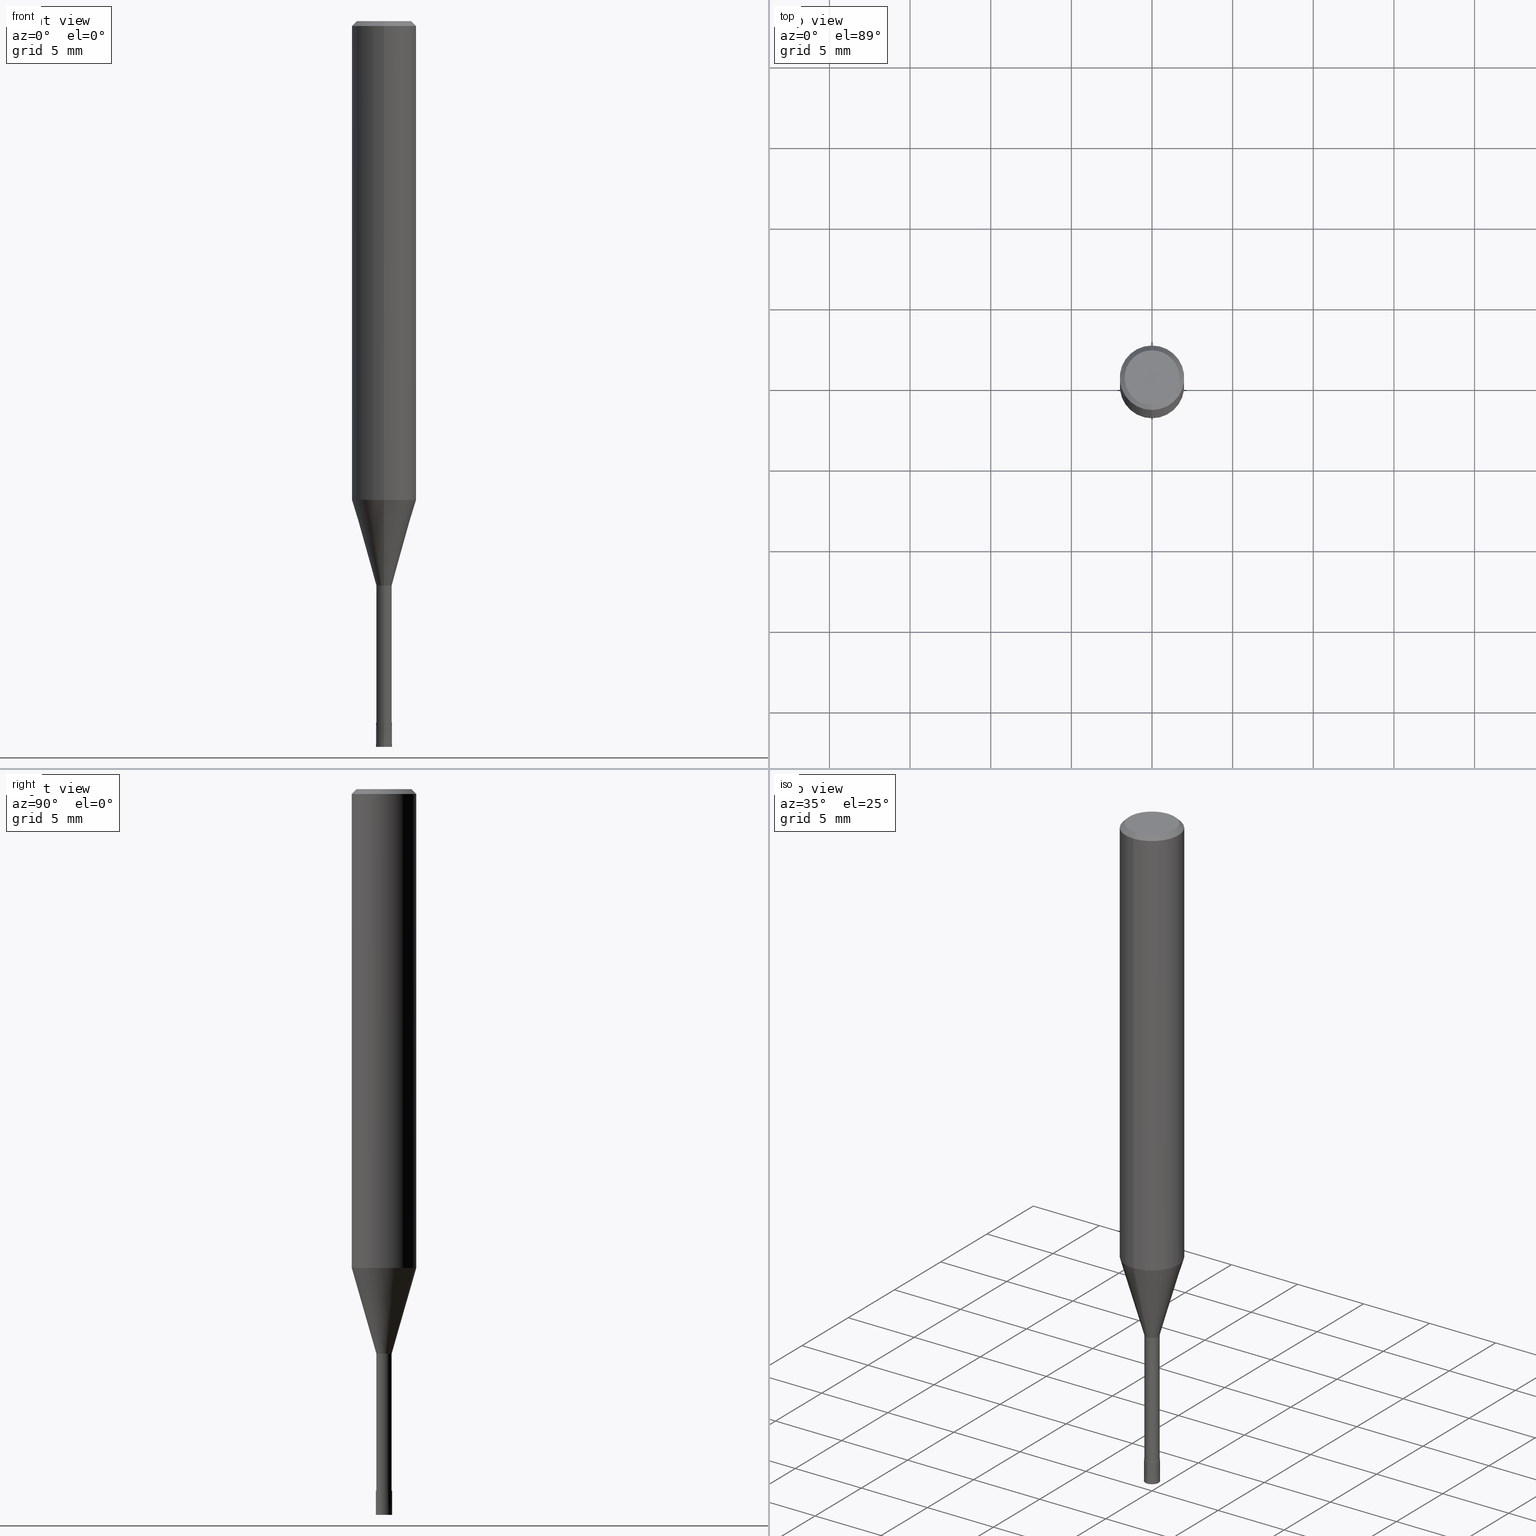
[diagram: canonical four-view strip — front | top / right | iso, engineering-drawing reading convention]
A machine part, canonical four-view strip (front | top / right | iso — engineering-drawing reading convention). The complete STEP part file that produces these views, byte-faithful:
ISO-10303-21;
HEADER;
FILE_DESCRIPTION(('no description'),'unknown implementation level');
FILE_NAME('HLS2010-100-Huellk.stp','  ',('CIMSOURCE GmbH'),('CADClick - KiM GmbH - www.kimweb.de'),'unknown preprocess','ACIS','unknown authorization');
FILE_SCHEMA(('automotive_design'));
ENDSEC;
DATA;
#1=MECHANICAL_DESIGN_GEOMETRIC_PRESENTATION_REPRESENTATION(' ',(#14,#15,#16,#17,#18,#19,#20,#21,#22,#23,#24,#25,#26,#27,#28,#29,#30,#31,#32,#33,#34,#35,#36,#37,#38,#39,#40,#41,#42,#43,#44,#45,#46,#47,#48,#49,#50,#51,#52,#53,#54,#55,#56,#57,#58,#59,#60,#61,#62,#63,#64,#65,#66,#67,#68,#69,#70,#71,#72),#10);
#2=PRODUCT_DEFINITION_CONTEXT('',#73,'design');
#3=APPLICATION_PROTOCOL_DEFINITION('INTERNATIONAL STANDARD','automotive_design',1994,#73);
#4=PRODUCT_CATEGORY_RELATIONSHIP('NONE','NONE',#74,#75);
#5=SHAPE_DEFINITION_REPRESENTATION(#76,#77);
#6=PRODUCT_DEFINITION_CONTEXT('',#78,'design');
#7=APPLICATION_PROTOCOL_DEFINITION('INTERNATIONAL STANDARD','automotive_design',1994,#78);
#8=PRODUCT_CATEGORY_RELATIONSHIP('NONE','NONE',#79,#80);
#9=SHAPE_DEFINITION_REPRESENTATION(#81,#82);
#10= (GEOMETRIC_REPRESENTATION_CONTEXT(3)GLOBAL_UNCERTAINTY_ASSIGNED_CONTEXT((#85))GLOBAL_UNIT_ASSIGNED_CONTEXT((#87,#88,#89))REPRESENTATION_CONTEXT('NONE','WORKSPACE'));
#14=STYLED_ITEM('',(#91),#92);
#15=STYLED_ITEM('',(#93),#94);
#16=STYLED_ITEM('',(#95),#96);
#17=STYLED_ITEM('',(#97),#98);
#18=STYLED_ITEM('',(#99),#100);
#19=STYLED_ITEM('',(#101),#102);
#20=STYLED_ITEM('',(#103),#104);
#21=STYLED_ITEM('',(#105),#106);
#22=STYLED_ITEM('',(#107),#108);
#23=STYLED_ITEM('',(#109),#110);
#24=STYLED_ITEM('',(#111),#112);
#25=STYLED_ITEM('',(#113),#114);
#26=STYLED_ITEM('',(#115),#116);
#27=STYLED_ITEM('',(#117),#118);
#28=STYLED_ITEM('',(#119),#120);
#29=STYLED_ITEM('',(#121),#122);
#30=STYLED_ITEM('',(#123),#124);
#31=STYLED_ITEM('',(#125),#126);
#32=STYLED_ITEM('',(#127),#128);
#33=STYLED_ITEM('',(#129),#130);
#34=STYLED_ITEM('',(#131),#132);
#35=STYLED_ITEM('',(#133),#134);
#36=STYLED_ITEM('',(#135),#136);
#37=STYLED_ITEM('',(#137),#138);
#38=STYLED_ITEM('',(#139),#140);
#39=STYLED_ITEM('',(#141),#142);
#40=STYLED_ITEM('',(#143),#144);
#41=STYLED_ITEM('',(#145),#146);
#42=STYLED_ITEM('',(#147),#148);
#43=STYLED_ITEM('',(#149),#150);
#44=STYLED_ITEM('',(#151),#152);
#45=STYLED_ITEM('',(#153),#154);
#46=STYLED_ITEM('',(#155),#156);
#47=STYLED_ITEM('',(#157),#158);
#48=STYLED_ITEM('',(#159),#160);
#49=STYLED_ITEM('',(#161),#162);
#50=STYLED_ITEM('',(#163),#164);
#51=STYLED_ITEM('',(#165),#166);
#52=STYLED_ITEM('',(#167),#168);
#53=STYLED_ITEM('',(#169),#170);
#54=STYLED_ITEM('',(#171),#172);
#55=STYLED_ITEM('',(#173),#174);
#56=STYLED_ITEM('',(#175),#176);
#57=STYLED_ITEM('',(#177),#178);
#58=STYLED_ITEM('',(#179),#180);
#59=STYLED_ITEM('',(#181),#182);
#60=STYLED_ITEM('',(#183),#184);
#61=STYLED_ITEM('',(#185),#186);
#62=STYLED_ITEM('',(#187),#188);
#63=STYLED_ITEM('',(#189),#190);
#64=STYLED_ITEM('',(#191),#192);
#65=STYLED_ITEM('',(#193),#194);
#66=STYLED_ITEM('',(#195),#196);
#67=STYLED_ITEM('',(#197),#198);
#68=STYLED_ITEM('',(#199),#200);
#69=STYLED_ITEM('',(#201),#202);
#70=STYLED_ITEM('',(#203),#204);
#71=STYLED_ITEM('',(#205),#206);
#72=STYLED_ITEM('',(#207),#208);
#73=APPLICATION_CONTEXT(' ');
#74=PRODUCT_CATEGORY('part','NONE');
#75=PRODUCT_RELATED_PRODUCT_CATEGORY('detail',' ',(#209));
#76=PRODUCT_DEFINITION_SHAPE('NONE','NONE',#210);
#77=ADVANCED_BREP_SHAPE_REPRESENTATION('1',(#138,#211),#10);
#78=APPLICATION_CONTEXT(' ');
#79=PRODUCT_CATEGORY('part','NONE');
#80=PRODUCT_RELATED_PRODUCT_CATEGORY('detail',' ',(#212));
#81=PRODUCT_DEFINITION_SHAPE('NONE','NONE',#213);
#82=ADVANCED_BREP_SHAPE_REPRESENTATION('2',(#200,#214),#10);
#85=UNCERTAINTY_MEASURE_WITH_UNIT(LENGTH_MEASURE(1.0E-006),#87,'','');
#87= (CONVERSION_BASED_UNIT('MILLIMETRE',#217)LENGTH_UNIT()NAMED_UNIT(#220));
#88= (NAMED_UNIT(#222)PLANE_ANGLE_UNIT()SI_UNIT($,.RADIAN.));
#89= (NAMED_UNIT(#222)SOLID_ANGLE_UNIT()SI_UNIT($,.STERADIAN.));
#91=PRESENTATION_STYLE_ASSIGNMENT((#228));
#92=VERTEX_POINT('',#229);
#93=PRESENTATION_STYLE_ASSIGNMENT((#230));
#94=VERTEX_POINT('',#231);
#95=PRESENTATION_STYLE_ASSIGNMENT((#232));
#96=VERTEX_POINT('',#233);
#97=PRESENTATION_STYLE_ASSIGNMENT((#234));
#98=EDGE_CURVE('',#100,#198,#235,.T.);
#99=PRESENTATION_STYLE_ASSIGNMENT((#236));
#100=VERTEX_POINT('',#237);
#101=PRESENTATION_STYLE_ASSIGNMENT((#238));
#102=EDGE_CURVE('',#114,#96,#239,.T.);
#103=PRESENTATION_STYLE_ASSIGNMENT((#240));
#104=EDGE_CURVE('',#92,#160,#241,.T.);
#105=PRESENTATION_STYLE_ASSIGNMENT((#242));
#106=VERTEX_POINT('',#243);
#107=PRESENTATION_STYLE_ASSIGNMENT((#244));
#108=VERTEX_POINT('',#245);
#109=PRESENTATION_STYLE_ASSIGNMENT((#246));
#110=ADVANCED_FACE('',(#247),#248,.T.);
#111=PRESENTATION_STYLE_ASSIGNMENT((#249));
#112=ADVANCED_FACE('',(#250,#251),#252,.T.);
#113=PRESENTATION_STYLE_ASSIGNMENT((#253));
#114=VERTEX_POINT('',#254);
#115=PRESENTATION_STYLE_ASSIGNMENT((#255));
#116=VERTEX_POINT('',#256);
#117=PRESENTATION_STYLE_ASSIGNMENT((#257));
#118=EDGE_CURVE('',#120,#144,#258,.T.);
#119=PRESENTATION_STYLE_ASSIGNMENT((#259));
#120=VERTEX_POINT('',#260);
#121=PRESENTATION_STYLE_ASSIGNMENT((#261));
#122=EDGE_CURVE('',#142,#194,#262,.T.);
#123=PRESENTATION_STYLE_ASSIGNMENT((#263));
#124=ADVANCED_FACE('',(#264),#265,.T.);
#125=PRESENTATION_STYLE_ASSIGNMENT((#266));
#126=EDGE_CURVE('',#108,#144,#267,.T.);
#127=PRESENTATION_STYLE_ASSIGNMENT((#268));
#128=ADVANCED_FACE('',(#269),#270,.T.);
#129=PRESENTATION_STYLE_ASSIGNMENT((#271));
#130=ADVANCED_FACE('',(#272),#273,.T.);
#131=PRESENTATION_STYLE_ASSIGNMENT((#274));
#132=ADVANCED_FACE('',(#275),#276,.T.);
#133=PRESENTATION_STYLE_ASSIGNMENT((#277));
#134=EDGE_CURVE('',#160,#158,#278,.T.);
#135=PRESENTATION_STYLE_ASSIGNMENT((#279));
#136=EDGE_CURVE('',#198,#100,#280,.T.);
#137=PRESENTATION_STYLE_ASSIGNMENT((#281));
#138=MANIFOLD_SOLID_BREP('1',#282);
#139=PRESENTATION_STYLE_ASSIGNMENT((#283));
#140=EDGE_CURVE('',#116,#100,#284,.T.);
#141=PRESENTATION_STYLE_ASSIGNMENT((#285));
#142=VERTEX_POINT('',#286);
#143=PRESENTATION_STYLE_ASSIGNMENT((#287));
#144=VERTEX_POINT('',#288);
#145=PRESENTATION_STYLE_ASSIGNMENT((#289));
#146=ADVANCED_FACE('',(#290),#291,.T.);
#147=PRESENTATION_STYLE_ASSIGNMENT((#292));
#148=EDGE_CURVE('',#106,#194,#293,.T.);
#149=PRESENTATION_STYLE_ASSIGNMENT((#294));
#150=VERTEX_POINT('',#295);
#151=PRESENTATION_STYLE_ASSIGNMENT((#296));
#152=EDGE_CURVE('',#96,#114,#297,.T.);
#153=PRESENTATION_STYLE_ASSIGNMENT((#298));
#154=EDGE_CURVE('',#150,#92,#299,.T.);
#155=PRESENTATION_STYLE_ASSIGNMENT((#300));
#156=EDGE_CURVE('',#108,#94,#301,.T.);
#157=PRESENTATION_STYLE_ASSIGNMENT((#302));
#158=VERTEX_POINT('',#303);
#159=PRESENTATION_STYLE_ASSIGNMENT((#304));
#160=VERTEX_POINT('',#305);
#161=PRESENTATION_STYLE_ASSIGNMENT((#306));
#162=ADVANCED_FACE('',(#307),#308,.T.);
#163=PRESENTATION_STYLE_ASSIGNMENT((#309));
#164=EDGE_CURVE('',#94,#114,#310,.T.);
#165=PRESENTATION_STYLE_ASSIGNMENT((#311));
#166=EDGE_CURVE('',#92,#150,#312,.T.);
#167=PRESENTATION_STYLE_ASSIGNMENT((#313));
#168=ADVANCED_FACE('',(#314),#315,.T.);
#169=PRESENTATION_STYLE_ASSIGNMENT((#316));
#170=ADVANCED_FACE('',(#317),#318,.T.);
#171=PRESENTATION_STYLE_ASSIGNMENT((#319));
#172=EDGE_CURVE('',#144,#120,#320,.T.);
#173=PRESENTATION_STYLE_ASSIGNMENT((#321));
#174=EDGE_CURVE('',#96,#108,#322,.T.);
#175=PRESENTATION_STYLE_ASSIGNMENT((#323));
#176=EDGE_CURVE('',#120,#94,#324,.T.);
#177=PRESENTATION_STYLE_ASSIGNMENT((#325));
#178=EDGE_CURVE('',#142,#116,#326,.T.);
#179=PRESENTATION_STYLE_ASSIGNMENT((#327));
#180=EDGE_CURVE('',#94,#108,#328,.T.);
#181=PRESENTATION_STYLE_ASSIGNMENT((#329));
#182=EDGE_CURVE('',#198,#106,#330,.T.);
#183=PRESENTATION_STYLE_ASSIGNMENT((#331));
#184=ADVANCED_FACE('',(#332),#333,.T.);
#185=PRESENTATION_STYLE_ASSIGNMENT((#334));
#186=EDGE_CURVE('',#158,#150,#335,.T.);
#187=PRESENTATION_STYLE_ASSIGNMENT((#336));
#188=EDGE_CURVE('',#106,#116,#337,.T.);
#189=PRESENTATION_STYLE_ASSIGNMENT((#338));
#190=ADVANCED_FACE('',(#339),#340,.T.);
#191=PRESENTATION_STYLE_ASSIGNMENT((#341));
#192=EDGE_CURVE('',#158,#160,#342,.T.);
#193=PRESENTATION_STYLE_ASSIGNMENT((#343));
#194=VERTEX_POINT('',#344);
#195=PRESENTATION_STYLE_ASSIGNMENT((#345));
#196=EDGE_CURVE('',#194,#142,#346,.T.);
#197=PRESENTATION_STYLE_ASSIGNMENT((#347));
#198=VERTEX_POINT('',#348);
#199=PRESENTATION_STYLE_ASSIGNMENT((#349));
#200=MANIFOLD_SOLID_BREP('2',#350);
#201=PRESENTATION_STYLE_ASSIGNMENT((#351));
#202=ADVANCED_FACE('',(#352),#353,.T.);
#203=PRESENTATION_STYLE_ASSIGNMENT((#354));
#204=ADVANCED_FACE('',(#355),#356,.T.);
#205=PRESENTATION_STYLE_ASSIGNMENT((#357));
#206=ADVANCED_FACE('',(#358),#359,.T.);
#207=PRESENTATION_STYLE_ASSIGNMENT((#360));
#208=EDGE_CURVE('',#116,#106,#361,.T.);
#209=PRODUCT('1','1','PART-1-DESC',(#362));
#210=PRODUCT_DEFINITION('NONE','NONE',#363,#2);
#211=AXIS2_PLACEMENT_3D('',#364,#365,#366);
#212=PRODUCT('2','2','PART-2-DESC',(#367));
#213=PRODUCT_DEFINITION('NONE','NONE',#368,#6);
#214=AXIS2_PLACEMENT_3D('',#369,#370,#371);
#217=LENGTH_MEASURE_WITH_UNIT(LENGTH_MEASURE(1.0),#372);
#220=DIMENSIONAL_EXPONENTS(1.0,0.0,0.0,0.0,0.0,0.0,0.0);
#222=DIMENSIONAL_EXPONENTS(0.0,0.0,0.0,0.0,0.0,0.0,0.0);
#228=POINT_STYLE(' ',#373,POSITIVE_LENGTH_MEASURE(1.0E-006),#374);
#229=CARTESIAN_POINT('',(6.12303176911189E-017,-0.5,-45.0));
#230=POINT_STYLE(' ',#375,POSITIVE_LENGTH_MEASURE(1.0E-006),#376);
#231=CARTESIAN_POINT('',(5.81626787747938E-017,-0.47495,-35.0));
#232=POINT_STYLE(' ',#377,POSITIVE_LENGTH_MEASURE(1.0E-006),#378);
#233=CARTESIAN_POINT('',(0.0,1.99995,-29.682));
#234=CURVE_STYLE('',#379,POSITIVE_LENGTH_MEASURE(1.0E-006),#380);
#235=CIRCLE('',#381,1.7);
#236=POINT_STYLE(' ',#382,POSITIVE_LENGTH_MEASURE(1.0E-006),#383);
#237=CARTESIAN_POINT('',(2.08183080149804E-016,-1.7,0.0));
#238=CURVE_STYLE('',#384,POSITIVE_LENGTH_MEASURE(1.0E-006),#385);
#239=CIRCLE('',#386,1.99995);
#240=CURVE_STYLE('',#387,POSITIVE_LENGTH_MEASURE(1.0E-006),#388);
#241=LINE('',#389,#390);
#242=POINT_STYLE(' ',#391,POSITIVE_LENGTH_MEASURE(1.0E-006),#392);
#243=CARTESIAN_POINT('',(0.0,2.0,-0.300000000000001));
#244=POINT_STYLE(' ',#393,POSITIVE_LENGTH_MEASURE(1.0E-006),#394);
#245=CARTESIAN_POINT('',(0.0,0.47495,-35.0));
#246=SURFACE_STYLE_USAGE(.BOTH.,#395);
#247=FACE_OUTER_BOUND('',#396,.T.);
#248=CYLINDRICAL_SURFACE('',#397,0.47495);
#249=SURFACE_STYLE_USAGE(.BOTH.,#398);
#250=FACE_OUTER_BOUND('',#399,.T.);
#251=FACE_BOUND('',#400,.T.);
#252=PLANE('',#401);
#253=POINT_STYLE(' ',#402,POSITIVE_LENGTH_MEASURE(1.0E-006),#403);
#254=CARTESIAN_POINT('',(2.44915147732706E-016,-1.99995,-29.682));
#255=POINT_STYLE(' ',#404,POSITIVE_LENGTH_MEASURE(1.0E-006),#405);
#256=CARTESIAN_POINT('',(2.44921270764475E-016,-2.0,-0.300000000000001));
#257=CURVE_STYLE('',#406,POSITIVE_LENGTH_MEASURE(1.0E-006),#407);
#258=CIRCLE('',#408,0.47495);
#259=POINT_STYLE(' ',#409,POSITIVE_LENGTH_MEASURE(1.0E-006),#410);
#260=CARTESIAN_POINT('',(5.81626787747938E-017,-0.47495,-43.5));
#261=CURVE_STYLE('',#411,POSITIVE_LENGTH_MEASURE(1.0E-006),#412);
#262=CIRCLE('',#413,2.0);
#263=SURFACE_STYLE_USAGE(.BOTH.,#414);
#264=FACE_OUTER_BOUND('',#415,.T.);
#265=CONICAL_SURFACE('',#416,1.85,0.785398163397447);
#266=CURVE_STYLE('',#417,POSITIVE_LENGTH_MEASURE(1.0E-006),#418);
#267=LINE('',#419,#420);
#268=SURFACE_STYLE_USAGE(.BOTH.,#421);
#269=FACE_OUTER_BOUND('',#422,.T.);
#270=PLANE('',#423);
#271=SURFACE_STYLE_USAGE(.BOTH.,#424);
#272=FACE_OUTER_BOUND('',#425,.T.);
#273=CONICAL_SURFACE('',#426,1.85,0.785398163397447);
#274=SURFACE_STYLE_USAGE(.BOTH.,#427);
#275=FACE_OUTER_BOUND('',#428,.T.);
#276=CONICAL_SURFACE('',#429,0.49995,6.66666665678939E-005);
#277=CURVE_STYLE('',#430,POSITIVE_LENGTH_MEASURE(1.0E-006),#431);
#278=CIRCLE('',#432,0.4999);
#279=CURVE_STYLE('',#433,POSITIVE_LENGTH_MEASURE(1.0E-006),#434);
#280=CIRCLE('',#435,1.7);
#281=SURFACE_STYLE_USAGE(.BOTH.,#436);
#282=CLOSED_SHELL('',(#190,#202,#162,#130,#112,#206,#124,#168,#146,#110,#128));
#283=CURVE_STYLE('',#437,POSITIVE_LENGTH_MEASURE(1.0E-006),#438);
#284=LINE('',#439,#440);
#285=POINT_STYLE(' ',#441,POSITIVE_LENGTH_MEASURE(1.0E-006),#442);
#286=CARTESIAN_POINT('',(2.44921270764475E-016,-2.0,-29.682));
#287=POINT_STYLE(' ',#443,POSITIVE_LENGTH_MEASURE(1.0E-006),#444);
#288=CARTESIAN_POINT('',(0.0,0.47495,-43.5));
#289=SURFACE_STYLE_USAGE(.BOTH.,#445);
#290=FACE_OUTER_BOUND('',#446,.T.);
#291=CONICAL_SURFACE('',#447,1.23745,0.279267977304115);
#292=CURVE_STYLE('',#448,POSITIVE_LENGTH_MEASURE(1.0E-006),#449);
#293=LINE('',#450,#451);
#294=POINT_STYLE(' ',#452,POSITIVE_LENGTH_MEASURE(1.0E-006),#453);
#295=CARTESIAN_POINT('',(0.0,0.5,-45.0));
#296=CURVE_STYLE('',#454,POSITIVE_LENGTH_MEASURE(1.0E-006),#455);
#297=CIRCLE('',#456,1.99995);
#298=CURVE_STYLE('',#457,POSITIVE_LENGTH_MEASURE(1.0E-006),#458);
#299=CIRCLE('',#459,0.5);
#300=CURVE_STYLE('',#460,POSITIVE_LENGTH_MEASURE(1.0E-006),#461);
#301=CIRCLE('',#462,0.47495);
#302=POINT_STYLE(' ',#463,POSITIVE_LENGTH_MEASURE(1.0E-006),#464);
#303=CARTESIAN_POINT('',(0.0,0.4999,-43.5));
#304=POINT_STYLE(' ',#465,POSITIVE_LENGTH_MEASURE(1.0E-006),#466);
#305=CARTESIAN_POINT('',(6.12180716275806E-017,-0.4999,-43.5));
#306=SURFACE_STYLE_USAGE(.BOTH.,#467);
#307=FACE_OUTER_BOUND('',#468,.T.);
#308=CYLINDRICAL_SURFACE('',#469,2.0);
#309=CURVE_STYLE('',#470,POSITIVE_LENGTH_MEASURE(1.0E-006),#471);
#310=LINE('',#472,#473);
#311=CURVE_STYLE('',#474,POSITIVE_LENGTH_MEASURE(1.0E-006),#475);
#312=CIRCLE('',#476,0.5);
#313=SURFACE_STYLE_USAGE(.BOTH.,#477);
#314=FACE_OUTER_BOUND('',#478,.T.);
#315=CYLINDRICAL_SURFACE('',#479,2.0);
#316=SURFACE_STYLE_USAGE(.BOTH.,#480);
#317=FACE_OUTER_BOUND('',#481,.T.);
#318=CONICAL_SURFACE('',#482,0.49995,6.66666665678939E-005);
#319=CURVE_STYLE('',#483,POSITIVE_LENGTH_MEASURE(1.0E-006),#484);
#320=CIRCLE('',#485,0.47495);
#321=CURVE_STYLE('',#486,POSITIVE_LENGTH_MEASURE(1.0E-006),#487);
#322=LINE('',#488,#489);
#323=CURVE_STYLE('',#490,POSITIVE_LENGTH_MEASURE(1.0E-006),#491);
#324=LINE('',#492,#493);
#325=CURVE_STYLE('',#494,POSITIVE_LENGTH_MEASURE(1.0E-006),#495);
#326=LINE('',#496,#497);
#327=CURVE_STYLE('',#498,POSITIVE_LENGTH_MEASURE(1.0E-006),#499);
#328=CIRCLE('',#500,0.47495);
#329=CURVE_STYLE('',#501,POSITIVE_LENGTH_MEASURE(1.0E-006),#502);
#330=LINE('',#503,#504);
#331=SURFACE_STYLE_USAGE(.BOTH.,#505);
#332=FACE_OUTER_BOUND('',#506,.T.);
#333=PLANE('',#507);
#334=CURVE_STYLE('',#508,POSITIVE_LENGTH_MEASURE(1.0E-006),#509);
#335=LINE('',#510,#511);
#336=CURVE_STYLE('',#512,POSITIVE_LENGTH_MEASURE(1.0E-006),#513);
#337=CIRCLE('',#514,2.0);
#338=SURFACE_STYLE_USAGE(.BOTH.,#515);
#339=FACE_OUTER_BOUND('',#516,.T.);
#340=CYLINDRICAL_SURFACE('',#517,0.47495);
#341=CURVE_STYLE('',#518,POSITIVE_LENGTH_MEASURE(1.0E-006),#519);
#342=CIRCLE('',#520,0.4999);
#343=POINT_STYLE(' ',#521,POSITIVE_LENGTH_MEASURE(1.0E-006),#522);
#344=CARTESIAN_POINT('',(0.0,2.0,-29.682));
#345=CURVE_STYLE('',#523,POSITIVE_LENGTH_MEASURE(1.0E-006),#524);
#346=CIRCLE('',#525,2.0);
#347=POINT_STYLE(' ',#526,POSITIVE_LENGTH_MEASURE(1.0E-006),#527);
#348=CARTESIAN_POINT('',(0.0,1.7,0.0));
#349=SURFACE_STYLE_USAGE(.BOTH.,#528);
#350=CLOSED_SHELL('',(#170,#204,#132,#184));
#351=SURFACE_STYLE_USAGE(.BOTH.,#529);
#352=FACE_OUTER_BOUND('',#530,.T.);
#353=CONICAL_SURFACE('',#531,1.23745,0.279267977304115);
#354=SURFACE_STYLE_USAGE(.BOTH.,#532);
#355=FACE_OUTER_BOUND('',#533,.T.);
#356=PLANE('',#534);
#357=SURFACE_STYLE_USAGE(.BOTH.,#535);
#358=FACE_OUTER_BOUND('',#536,.T.);
#359=PLANE('',#537);
#360=CURVE_STYLE('',#538,POSITIVE_LENGTH_MEASURE(1.0E-006),#539);
#361=CIRCLE('',#540,2.0);
#362=PRODUCT_CONTEXT('',#73,'mechanical');
#363=PRODUCT_DEFINITION_FORMATION_WITH_SPECIFIED_SOURCE(' ','NONE',#209,.NOT_KNOWN.);
#364=CARTESIAN_POINT('',(0.0,0.0,0.0));
#365=DIRECTION('',(0.0,0.0,1.0));
#366=DIRECTION('',(1.0,0.0,0.0));
#367=PRODUCT_CONTEXT('',#78,'mechanical');
#368=PRODUCT_DEFINITION_FORMATION_WITH_SPECIFIED_SOURCE(' ','NONE',#212,.NOT_KNOWN.);
#369=CARTESIAN_POINT('',(0.0,0.0,0.0));
#370=DIRECTION('',(0.0,0.0,1.0));
#371=DIRECTION('',(1.0,0.0,0.0));
#372= (NAMED_UNIT(#220)LENGTH_UNIT()SI_UNIT(.MILLI.,.METRE.));
#373=PRE_DEFINED_MARKER('');
#374=COLOUR_RGB('',0.800000011920929,0.800000011920929,0.800000011920929);
#375=PRE_DEFINED_MARKER('');
#376=COLOUR_RGB('',0.498039215803146,0.498039215803146,0.498039215803146);
#377=PRE_DEFINED_MARKER('');
#378=COLOUR_RGB('',0.498039215803146,0.498039215803146,0.498039215803146);
#379=DRAUGHTING_PRE_DEFINED_CURVE_FONT('continuous');
#380=COLOUR_RGB('',0.498039215803146,0.498039215803146,0.498039215803146);
#381=AXIS2_PLACEMENT_3D('',#542,#543,#544);
#382=PRE_DEFINED_MARKER('');
#383=COLOUR_RGB('',0.498039215803146,0.498039215803146,0.498039215803146);
#384=DRAUGHTING_PRE_DEFINED_CURVE_FONT('continuous');
#385=COLOUR_RGB('',0.498039215803146,0.498039215803146,0.498039215803146);
#386=AXIS2_PLACEMENT_3D('',#545,#546,#547);
#387=DRAUGHTING_PRE_DEFINED_CURVE_FONT('continuous');
#388=COLOUR_RGB('',0.800000011920929,0.800000011920929,0.800000011920929);
#389=CARTESIAN_POINT('',(6.12241946593497E-017,-0.49995,-44.25));
#390=VECTOR('',#548,1.0);
#391=PRE_DEFINED_MARKER('');
#392=COLOUR_RGB('',0.498039215803146,0.498039215803146,0.498039215803146);
#393=PRE_DEFINED_MARKER('');
#394=COLOUR_RGB('',0.498039215803146,0.498039215803146,0.498039215803146);
#395=SURFACE_SIDE_STYLE('',(#549));
#396=EDGE_LOOP('',(#550,#551,#552,#553));
#397=AXIS2_PLACEMENT_3D('',#554,#555,#556);
#398=SURFACE_SIDE_STYLE('',(#557));
#399=EDGE_LOOP('',(#558,#559));
#400=EDGE_LOOP('',(#560,#561));
#401=AXIS2_PLACEMENT_3D('',#562,#563,#564);
#402=PRE_DEFINED_MARKER('');
#403=COLOUR_RGB('',0.498039215803146,0.498039215803146,0.498039215803146);
#404=PRE_DEFINED_MARKER('');
#405=COLOUR_RGB('',0.498039215803146,0.498039215803146,0.498039215803146);
#406=DRAUGHTING_PRE_DEFINED_CURVE_FONT('continuous');
#407=COLOUR_RGB('',0.498039215803146,0.498039215803146,0.498039215803146);
#408=AXIS2_PLACEMENT_3D('',#565,#566,#567);
#409=PRE_DEFINED_MARKER('');
#410=COLOUR_RGB('',0.498039215803146,0.498039215803146,0.498039215803146);
#411=DRAUGHTING_PRE_DEFINED_CURVE_FONT('continuous');
#412=COLOUR_RGB('',0.498039215803146,0.498039215803146,0.498039215803146);
#413=AXIS2_PLACEMENT_3D('',#568,#569,#570);
#414=SURFACE_SIDE_STYLE('',(#571));
#415=EDGE_LOOP('',(#572,#573,#574,#575));
#416=AXIS2_PLACEMENT_3D('',#576,#577,#578);
#417=DRAUGHTING_PRE_DEFINED_CURVE_FONT('continuous');
#418=COLOUR_RGB('',0.498039215803146,0.498039215803146,0.498039215803146);
#419=CARTESIAN_POINT('',(-5.81626787747938E-017,0.47495,-39.25));
#420=VECTOR('',#579,1.0);
#421=SURFACE_SIDE_STYLE('',(#580));
#422=EDGE_LOOP('',(#581,#582));
#423=AXIS2_PLACEMENT_3D('',#583,#584,#585);
#424=SURFACE_SIDE_STYLE('',(#586));
#425=EDGE_LOOP('',(#587,#588,#589,#590));
#426=AXIS2_PLACEMENT_3D('',#591,#592,#593);
#427=SURFACE_SIDE_STYLE('',(#594));
#428=EDGE_LOOP('',(#595,#596,#597,#598));
#429=AXIS2_PLACEMENT_3D('',#599,#600,#601);
#430=DRAUGHTING_PRE_DEFINED_CURVE_FONT('continuous');
#431=COLOUR_RGB('',0.800000011920929,0.800000011920929,0.800000011920929);
#432=AXIS2_PLACEMENT_3D('',#602,#603,#604);
#433=DRAUGHTING_PRE_DEFINED_CURVE_FONT('continuous');
#434=COLOUR_RGB('',0.498039215803146,0.498039215803146,0.498039215803146);
#435=AXIS2_PLACEMENT_3D('',#605,#606,#607);
#436=SURFACE_SIDE_STYLE('',(#608));
#437=DRAUGHTING_PRE_DEFINED_CURVE_FONT('continuous');
#438=COLOUR_RGB('',0.498039215803146,0.498039215803146,0.498039215803146);
#439=CARTESIAN_POINT('',(2.2655217545714E-016,-1.85,-0.150000000000002));
#440=VECTOR('',#609,1.0);
#441=PRE_DEFINED_MARKER('');
#442=COLOUR_RGB('',0.498039215803146,0.498039215803146,0.498039215803146);
#443=PRE_DEFINED_MARKER('');
#444=COLOUR_RGB('',0.498039215803146,0.498039215803146,0.498039215803146);
#445=SURFACE_SIDE_STYLE('',(#610));
#446=EDGE_LOOP('',(#611,#612,#613,#614));
#447=AXIS2_PLACEMENT_3D('',#615,#616,#617);
#448=DRAUGHTING_PRE_DEFINED_CURVE_FONT('continuous');
#449=COLOUR_RGB('',0.498039215803146,0.498039215803146,0.498039215803146);
#450=CARTESIAN_POINT('',(-2.44921270764475E-016,2.0,-14.991));
#451=VECTOR('',#618,1.0);
#452=PRE_DEFINED_MARKER('');
#453=COLOUR_RGB('',0.800000011920929,0.800000011920929,0.800000011920929);
#454=DRAUGHTING_PRE_DEFINED_CURVE_FONT('continuous');
#455=COLOUR_RGB('',0.498039215803146,0.498039215803146,0.498039215803146);
#456=AXIS2_PLACEMENT_3D('',#619,#620,#621);
#457=DRAUGHTING_PRE_DEFINED_CURVE_FONT('continuous');
#458=COLOUR_RGB('',0.800000011920929,0.800000011920929,0.800000011920929);
#459=AXIS2_PLACEMENT_3D('',#622,#623,#624);
#460=DRAUGHTING_PRE_DEFINED_CURVE_FONT('continuous');
#461=COLOUR_RGB('',0.498039215803146,0.498039215803146,0.498039215803146);
#462=AXIS2_PLACEMENT_3D('',#625,#626,#627);
#463=PRE_DEFINED_MARKER('');
#464=COLOUR_RGB('',0.800000011920929,0.800000011920929,0.800000011920929);
#465=PRE_DEFINED_MARKER('');
#466=COLOUR_RGB('',0.800000011920929,0.800000011920929,0.800000011920929);
#467=SURFACE_SIDE_STYLE('',(#628));
#468=EDGE_LOOP('',(#629,#630,#631,#632));
#469=AXIS2_PLACEMENT_3D('',#633,#634,#635);
#470=DRAUGHTING_PRE_DEFINED_CURVE_FONT('continuous');
#471=COLOUR_RGB('',0.498039215803146,0.498039215803146,0.498039215803146);
#472=CARTESIAN_POINT('',(1.5153891325375E-016,-1.23745,-32.341));
#473=VECTOR('',#636,1.0);
#474=DRAUGHTING_PRE_DEFINED_CURVE_FONT('continuous');
#475=COLOUR_RGB('',0.800000011920929,0.800000011920929,0.800000011920929);
#476=AXIS2_PLACEMENT_3D('',#637,#638,#639);
#477=SURFACE_SIDE_STYLE('',(#640));
#478=EDGE_LOOP('',(#641,#642,#643,#644));
#479=AXIS2_PLACEMENT_3D('',#645,#646,#647);
#480=SURFACE_SIDE_STYLE('',(#648));
#481=EDGE_LOOP('',(#649,#650,#651,#652));
#482=AXIS2_PLACEMENT_3D('',#653,#654,#655);
#483=DRAUGHTING_PRE_DEFINED_CURVE_FONT('continuous');
#484=COLOUR_RGB('',0.498039215803146,0.498039215803146,0.498039215803146);
#485=AXIS2_PLACEMENT_3D('',#656,#657,#658);
#486=DRAUGHTING_PRE_DEFINED_CURVE_FONT('continuous');
#487=COLOUR_RGB('',0.498039215803146,0.498039215803146,0.498039215803146);
#488=CARTESIAN_POINT('',(-1.5153891325375E-016,1.23745,-32.341));
#489=VECTOR('',#659,1.0);
#490=DRAUGHTING_PRE_DEFINED_CURVE_FONT('continuous');
#491=COLOUR_RGB('',0.498039215803146,0.498039215803146,0.498039215803146);
#492=CARTESIAN_POINT('',(5.81626787747938E-017,-0.47495,-39.25));
#493=VECTOR('',#660,1.0);
#494=DRAUGHTING_PRE_DEFINED_CURVE_FONT('continuous');
#495=COLOUR_RGB('',0.498039215803146,0.498039215803146,0.498039215803146);
#496=CARTESIAN_POINT('',(2.44921270764475E-016,-2.0,-14.991));
#497=VECTOR('',#661,1.0);
#498=DRAUGHTING_PRE_DEFINED_CURVE_FONT('continuous');
#499=COLOUR_RGB('',0.498039215803146,0.498039215803146,0.498039215803146);
#500=AXIS2_PLACEMENT_3D('',#662,#663,#664);
#501=DRAUGHTING_PRE_DEFINED_CURVE_FONT('continuous');
#502=COLOUR_RGB('',0.498039215803146,0.498039215803146,0.498039215803146);
#503=CARTESIAN_POINT('',(-2.2655217545714E-016,1.85,-0.150000000000002));
#504=VECTOR('',#665,1.0);
#505=SURFACE_SIDE_STYLE('',(#666));
#506=EDGE_LOOP('',(#667,#668));
#507=AXIS2_PLACEMENT_3D('',#669,#670,#671);
#508=DRAUGHTING_PRE_DEFINED_CURVE_FONT('continuous');
#509=COLOUR_RGB('',0.800000011920929,0.800000011920929,0.800000011920929);
#510=CARTESIAN_POINT('',(-6.12241946593497E-017,0.49995,-44.25));
#511=VECTOR('',#672,1.0);
#512=DRAUGHTING_PRE_DEFINED_CURVE_FONT('continuous');
#513=COLOUR_RGB('',0.498039215803146,0.498039215803146,0.498039215803146);
#514=AXIS2_PLACEMENT_3D('',#673,#674,#675);
#515=SURFACE_SIDE_STYLE('',(#676));
#516=EDGE_LOOP('',(#677,#678,#679,#680));
#517=AXIS2_PLACEMENT_3D('',#681,#682,#683);
#518=DRAUGHTING_PRE_DEFINED_CURVE_FONT('continuous');
#519=COLOUR_RGB('',0.800000011920929,0.800000011920929,0.800000011920929);
#520=AXIS2_PLACEMENT_3D('',#684,#685,#686);
#521=PRE_DEFINED_MARKER('');
#522=COLOUR_RGB('',0.498039215803146,0.498039215803146,0.498039215803146);
#523=DRAUGHTING_PRE_DEFINED_CURVE_FONT('continuous');
#524=COLOUR_RGB('',0.498039215803146,0.498039215803146,0.498039215803146);
#525=AXIS2_PLACEMENT_3D('',#687,#688,#689);
#526=PRE_DEFINED_MARKER('');
#527=COLOUR_RGB('',0.498039215803146,0.498039215803146,0.498039215803146);
#528=SURFACE_SIDE_STYLE('',(#690));
#529=SURFACE_SIDE_STYLE('',(#691));
#530=EDGE_LOOP('',(#692,#693,#694,#695));
#531=AXIS2_PLACEMENT_3D('',#696,#697,#698);
#532=SURFACE_SIDE_STYLE('',(#699));
#533=EDGE_LOOP('',(#700,#701));
#534=AXIS2_PLACEMENT_3D('',#702,#703,#704);
#535=SURFACE_SIDE_STYLE('',(#705));
#536=EDGE_LOOP('',(#706,#707));
#537=AXIS2_PLACEMENT_3D('',#708,#709,#710);
#538=DRAUGHTING_PRE_DEFINED_CURVE_FONT('continuous');
#539=COLOUR_RGB('',0.498039215803146,0.498039215803146,0.498039215803146);
#540=AXIS2_PLACEMENT_3D('',#711,#712,#713);
#542=CARTESIAN_POINT('',(0.0,0.0,0.0));
#543=DIRECTION('',(0.0,0.0,-1.0));
#544=DIRECTION('',(0.0,1.0,0.0));
#545=CARTESIAN_POINT('',(0.0,0.0,-29.682));
#546=DIRECTION('',(0.0,0.0,-1.0));
#547=DIRECTION('',(0.0,1.0,0.0));
#548=DIRECTION('',(-8.16404234067263E-021,6.66666665185112E-005,0.999999997777778));
#549=SURFACE_STYLE_FILL_AREA(#714);
#550=ORIENTED_EDGE('',*,*,#126,.T.);
#551=ORIENTED_EDGE('',*,*,#118,.F.);
#552=ORIENTED_EDGE('',*,*,#176,.T.);
#553=ORIENTED_EDGE('',*,*,#180,.T.);
#554=CARTESIAN_POINT('',(0.0,0.0,-39.25));
#555=DIRECTION('',(-0.0,-0.0,1.0));
#556=DIRECTION('',(0.0,1.0,0.0));
#557=SURFACE_STYLE_FILL_AREA(#715);
#558=ORIENTED_EDGE('',*,*,#196,.T.);
#559=ORIENTED_EDGE('',*,*,#122,.T.);
#560=ORIENTED_EDGE('',*,*,#152,.F.);
#561=ORIENTED_EDGE('',*,*,#102,.F.);
#562=CARTESIAN_POINT('',(0.0,1.0,-29.682));
#563=DIRECTION('',(0.0,0.0,-1.0));
#564=DIRECTION('',(0.0,1.0,0.0));
#565=CARTESIAN_POINT('',(0.0,0.0,-43.5));
#566=DIRECTION('',(0.0,0.0,-1.0));
#567=DIRECTION('',(0.0,1.0,0.0));
#568=CARTESIAN_POINT('',(0.0,0.0,-29.682));
#569=DIRECTION('',(0.0,0.0,-1.0));
#570=DIRECTION('',(0.0,1.0,0.0));
#571=SURFACE_STYLE_FILL_AREA(#716);
#572=ORIENTED_EDGE('',*,*,#182,.T.);
#573=ORIENTED_EDGE('',*,*,#208,.F.);
#574=ORIENTED_EDGE('',*,*,#140,.T.);
#575=ORIENTED_EDGE('',*,*,#98,.T.);
#576=CARTESIAN_POINT('',(0.0,0.0,-0.150000000000002));
#577=DIRECTION('',(0.0,-0.0,-1.0));
#578=DIRECTION('',(0.0,1.0,0.0));
#579=DIRECTION('',(0.0,0.0,-1.0));
#580=SURFACE_STYLE_FILL_AREA(#717);
#581=ORIENTED_EDGE('',*,*,#172,.T.);
#582=ORIENTED_EDGE('',*,*,#118,.T.);
#583=CARTESIAN_POINT('',(0.0,0.237475,-43.5));
#584=DIRECTION('',(0.0,0.0,-1.0));
#585=DIRECTION('',(0.0,1.0,0.0));
#586=SURFACE_STYLE_FILL_AREA(#718);
#587=ORIENTED_EDGE('',*,*,#182,.F.);
#588=ORIENTED_EDGE('',*,*,#136,.T.);
#589=ORIENTED_EDGE('',*,*,#140,.F.);
#590=ORIENTED_EDGE('',*,*,#188,.F.);
#591=CARTESIAN_POINT('',(0.0,0.0,-0.150000000000002));
#592=DIRECTION('',(0.0,-0.0,-1.0));
#593=DIRECTION('',(0.0,1.0,0.0));
#594=SURFACE_STYLE_FILL_AREA(#719);
#595=ORIENTED_EDGE('',*,*,#186,.T.);
#596=ORIENTED_EDGE('',*,*,#166,.F.);
#597=ORIENTED_EDGE('',*,*,#104,.T.);
#598=ORIENTED_EDGE('',*,*,#134,.T.);
#599=CARTESIAN_POINT('',(0.0,0.0,-44.25));
#600=DIRECTION('',(0.0,-0.0,-1.0));
#601=DIRECTION('',(0.0,1.0,0.0));
#602=CARTESIAN_POINT('',(0.0,0.0,-43.5));
#603=DIRECTION('',(0.0,0.0,-1.0));
#604=DIRECTION('',(0.0,1.0,0.0));
#605=CARTESIAN_POINT('',(0.0,0.0,0.0));
#606=DIRECTION('',(0.0,0.0,-1.0));
#607=DIRECTION('',(0.0,1.0,0.0));
#608=SURFACE_STYLE_FILL_AREA(#720);
#609=DIRECTION('',(-8.65927457071934E-017,0.707106781186546,0.707106781186549));
#610=SURFACE_STYLE_FILL_AREA(#721);
#611=ORIENTED_EDGE('',*,*,#174,.T.);
#612=ORIENTED_EDGE('',*,*,#180,.F.);
#613=ORIENTED_EDGE('',*,*,#164,.T.);
#614=ORIENTED_EDGE('',*,*,#102,.T.);
#615=CARTESIAN_POINT('',(0.0,0.0,-32.341));
#616=DIRECTION('',(-0.0,-0.0,1.0));
#617=DIRECTION('',(0.0,1.0,0.0));
#618=DIRECTION('',(0.0,0.0,-1.0));
#619=CARTESIAN_POINT('',(0.0,0.0,-29.682));
#620=DIRECTION('',(0.0,0.0,-1.0));
#621=DIRECTION('',(0.0,1.0,0.0));
#622=CARTESIAN_POINT('',(0.0,0.0,-45.0));
#623=DIRECTION('',(0.0,0.0,-1.0));
#624=DIRECTION('',(0.0,1.0,0.0));
#625=CARTESIAN_POINT('',(0.0,0.0,-35.0));
#626=DIRECTION('',(0.0,0.0,-1.0));
#627=DIRECTION('',(0.0,1.0,0.0));
#628=SURFACE_STYLE_FILL_AREA(#722);
#629=ORIENTED_EDGE('',*,*,#148,.F.);
#630=ORIENTED_EDGE('',*,*,#188,.T.);
#631=ORIENTED_EDGE('',*,*,#178,.F.);
#632=ORIENTED_EDGE('',*,*,#196,.F.);
#633=CARTESIAN_POINT('',(0.0,0.0,-14.991));
#634=DIRECTION('',(-0.0,-0.0,1.0));
#635=DIRECTION('',(0.0,1.0,0.0));
#636=DIRECTION('',(3.37565264353533E-017,-0.275652060190515,0.961257479405349));
#637=CARTESIAN_POINT('',(0.0,0.0,-45.0));
#638=DIRECTION('',(0.0,0.0,-1.0));
#639=DIRECTION('',(0.0,1.0,0.0));
#640=SURFACE_STYLE_FILL_AREA(#723);
#641=ORIENTED_EDGE('',*,*,#148,.T.);
#642=ORIENTED_EDGE('',*,*,#122,.F.);
#643=ORIENTED_EDGE('',*,*,#178,.T.);
#644=ORIENTED_EDGE('',*,*,#208,.T.);
#645=CARTESIAN_POINT('',(0.0,0.0,-14.991));
#646=DIRECTION('',(-0.0,-0.0,1.0));
#647=DIRECTION('',(0.0,1.0,0.0));
#648=SURFACE_STYLE_FILL_AREA(#724);
#649=ORIENTED_EDGE('',*,*,#186,.F.);
#650=ORIENTED_EDGE('',*,*,#192,.T.);
#651=ORIENTED_EDGE('',*,*,#104,.F.);
#652=ORIENTED_EDGE('',*,*,#154,.F.);
#653=CARTESIAN_POINT('',(0.0,0.0,-44.25));
#654=DIRECTION('',(0.0,-0.0,-1.0));
#655=DIRECTION('',(0.0,1.0,0.0));
#656=CARTESIAN_POINT('',(0.0,0.0,-43.5));
#657=DIRECTION('',(0.0,0.0,-1.0));
#658=DIRECTION('',(0.0,1.0,0.0));
#659=DIRECTION('',(3.37565264353533E-017,-0.275652060190515,-0.961257479405349));
#660=DIRECTION('',(-0.0,-0.0,1.0));
#661=DIRECTION('',(-0.0,-0.0,1.0));
#662=CARTESIAN_POINT('',(0.0,0.0,-35.0));
#663=DIRECTION('',(0.0,0.0,-1.0));
#664=DIRECTION('',(0.0,1.0,0.0));
#665=DIRECTION('',(-8.65927457071934E-017,0.707106781186546,-0.707106781186549));
#666=SURFACE_STYLE_FILL_AREA(#725);
#667=ORIENTED_EDGE('',*,*,#154,.T.);
#668=ORIENTED_EDGE('',*,*,#166,.T.);
#669=CARTESIAN_POINT('',(0.0,0.2475,-45.0));
#670=DIRECTION('',(0.0,0.0,-1.0));
#671=DIRECTION('',(0.0,1.0,0.0));
#672=DIRECTION('',(-8.16404234067263E-021,6.66666665185112E-005,-0.999999997777778));
#673=CARTESIAN_POINT('',(0.0,0.0,-0.300000000000001));
#674=DIRECTION('',(0.0,0.0,-1.0));
#675=DIRECTION('',(0.0,1.0,0.0));
#676=SURFACE_STYLE_FILL_AREA(#726);
#677=ORIENTED_EDGE('',*,*,#126,.F.);
#678=ORIENTED_EDGE('',*,*,#156,.T.);
#679=ORIENTED_EDGE('',*,*,#176,.F.);
#680=ORIENTED_EDGE('',*,*,#172,.F.);
#681=CARTESIAN_POINT('',(0.0,0.0,-39.25));
#682=DIRECTION('',(-0.0,-0.0,1.0));
#683=DIRECTION('',(0.0,1.0,0.0));
#684=CARTESIAN_POINT('',(0.0,0.0,-43.5));
#685=DIRECTION('',(0.0,0.0,-1.0));
#686=DIRECTION('',(0.0,1.0,0.0));
#687=CARTESIAN_POINT('',(0.0,0.0,-29.682));
#688=DIRECTION('',(0.0,0.0,-1.0));
#689=DIRECTION('',(0.0,1.0,0.0));
#690=SURFACE_STYLE_FILL_AREA(#727);
#691=SURFACE_STYLE_FILL_AREA(#728);
#692=ORIENTED_EDGE('',*,*,#174,.F.);
#693=ORIENTED_EDGE('',*,*,#152,.T.);
#694=ORIENTED_EDGE('',*,*,#164,.F.);
#695=ORIENTED_EDGE('',*,*,#156,.F.);
#696=CARTESIAN_POINT('',(0.0,0.0,-32.341));
#697=DIRECTION('',(-0.0,-0.0,1.0));
#698=DIRECTION('',(0.0,1.0,0.0));
#699=SURFACE_STYLE_FILL_AREA(#729);
#700=ORIENTED_EDGE('',*,*,#192,.F.);
#701=ORIENTED_EDGE('',*,*,#134,.F.);
#702=CARTESIAN_POINT('',(0.0,0.24995,-43.5));
#703=DIRECTION('',(-0.0,0.0,1.0));
#704=DIRECTION('',(0.0,-1.0,0.0));
#705=SURFACE_STYLE_FILL_AREA(#730);
#706=ORIENTED_EDGE('',*,*,#136,.F.);
#707=ORIENTED_EDGE('',*,*,#98,.F.);
#708=CARTESIAN_POINT('',(0.0,0.85,0.0));
#709=DIRECTION('',(-0.0,0.0,1.0));
#710=DIRECTION('',(0.0,-1.0,0.0));
#711=CARTESIAN_POINT('',(0.0,0.0,-0.300000000000001));
#712=DIRECTION('',(0.0,0.0,-1.0));
#713=DIRECTION('',(0.0,1.0,0.0));
#714=FILL_AREA_STYLE('',(#731));
#715=FILL_AREA_STYLE('',(#732));
#716=FILL_AREA_STYLE('',(#733));
#717=FILL_AREA_STYLE('',(#734));
#718=FILL_AREA_STYLE('',(#735));
#719=FILL_AREA_STYLE('',(#736));
#720=FILL_AREA_STYLE('',(#737));
#721=FILL_AREA_STYLE('',(#738));
#722=FILL_AREA_STYLE('',(#739));
#723=FILL_AREA_STYLE('',(#740));
#724=FILL_AREA_STYLE('',(#741));
#725=FILL_AREA_STYLE('',(#742));
#726=FILL_AREA_STYLE('',(#743));
#727=FILL_AREA_STYLE('',(#744));
#728=FILL_AREA_STYLE('',(#745));
#729=FILL_AREA_STYLE('',(#746));
#730=FILL_AREA_STYLE('',(#747));
#731=FILL_AREA_STYLE_COLOUR('',#748);
#732=FILL_AREA_STYLE_COLOUR('',#749);
#733=FILL_AREA_STYLE_COLOUR('',#750);
#734=FILL_AREA_STYLE_COLOUR('',#751);
#735=FILL_AREA_STYLE_COLOUR('',#752);
#736=FILL_AREA_STYLE_COLOUR('',#753);
#737=FILL_AREA_STYLE_COLOUR('',#754);
#738=FILL_AREA_STYLE_COLOUR('',#755);
#739=FILL_AREA_STYLE_COLOUR('',#756);
#740=FILL_AREA_STYLE_COLOUR('',#757);
#741=FILL_AREA_STYLE_COLOUR('',#758);
#742=FILL_AREA_STYLE_COLOUR('',#759);
#743=FILL_AREA_STYLE_COLOUR('',#760);
#744=FILL_AREA_STYLE_COLOUR('',#761);
#745=FILL_AREA_STYLE_COLOUR('',#762);
#746=FILL_AREA_STYLE_COLOUR('',#763);
#747=FILL_AREA_STYLE_COLOUR('',#764);
#748=COLOUR_RGB('',0.498039215803146,0.498039215803146,0.498039215803146);
#749=COLOUR_RGB('',0.498039215803146,0.498039215803146,0.498039215803146);
#750=COLOUR_RGB('',0.498039215803146,0.498039215803146,0.498039215803146);
#751=COLOUR_RGB('',0.498039215803146,0.498039215803146,0.498039215803146);
#752=COLOUR_RGB('',0.498039215803146,0.498039215803146,0.498039215803146);
#753=COLOUR_RGB('',0.800000011920929,0.800000011920929,0.800000011920929);
#754=COLOUR_RGB('',0.498039215803146,0.498039215803146,0.498039215803146);
#755=COLOUR_RGB('',0.498039215803146,0.498039215803146,0.498039215803146);
#756=COLOUR_RGB('',0.498039215803146,0.498039215803146,0.498039215803146);
#757=COLOUR_RGB('',0.498039215803146,0.498039215803146,0.498039215803146);
#758=COLOUR_RGB('',0.800000011920929,0.800000011920929,0.800000011920929);
#759=COLOUR_RGB('',0.800000011920929,0.800000011920929,0.800000011920929);
#760=COLOUR_RGB('',0.498039215803146,0.498039215803146,0.498039215803146);
#761=COLOUR_RGB('',0.800000011920929,0.800000011920929,0.800000011920929);
#762=COLOUR_RGB('',0.498039215803146,0.498039215803146,0.498039215803146);
#763=COLOUR_RGB('',0.800000011920929,0.800000011920929,0.800000011920929);
#764=COLOUR_RGB('',0.498039215803146,0.498039215803146,0.498039215803146);
#765=AXIS2_PLACEMENT_3D('PCS',#766,#767,#768);
#766=CARTESIAN_POINT('',(0.0,0.0,0.0));
#767=DIRECTION('',(0.0,0.0,1.0));
#768=DIRECTION('',(1.0,0.0,0.0));
#769=AXIS2_PLACEMENT_3D('CIP',#770,#771,#772);
#770=CARTESIAN_POINT('',(0.0,0.0,-45.0));
#771=DIRECTION('',(0.0,0.0,1.0));
#772=DIRECTION('',(1.0,0.0,0.0));
#773=AXIS2_PLACEMENT_3D('CRP',#774,#775,#776);
#774=CARTESIAN_POINT('',(-0.5,0.0,-45.0));
#775=DIRECTION('',(0.0,0.0,1.0));
#776=DIRECTION('',(1.0,0.0,0.0));
#777=AXIS2_PLACEMENT_3D('MCS',#778,#779,#780);
#778=CARTESIAN_POINT('',(0.0,0.0,-29.682));
#779=DIRECTION('',(0.0,0.0,1.0));
#780=DIRECTION('',(1.0,0.0,0.0));
#781=CONSTRUCTIVE_GEOMETRY_REPRESENTATION_RELATIONSHIP('coordinate systems',$,#77,#782);
#782=CONSTRUCTIVE_GEOMETRY_REPRESENTATION('coordinate systems',(#765,#769,#773,#777),#10);
ENDSEC;
END-ISO-10303-21;
